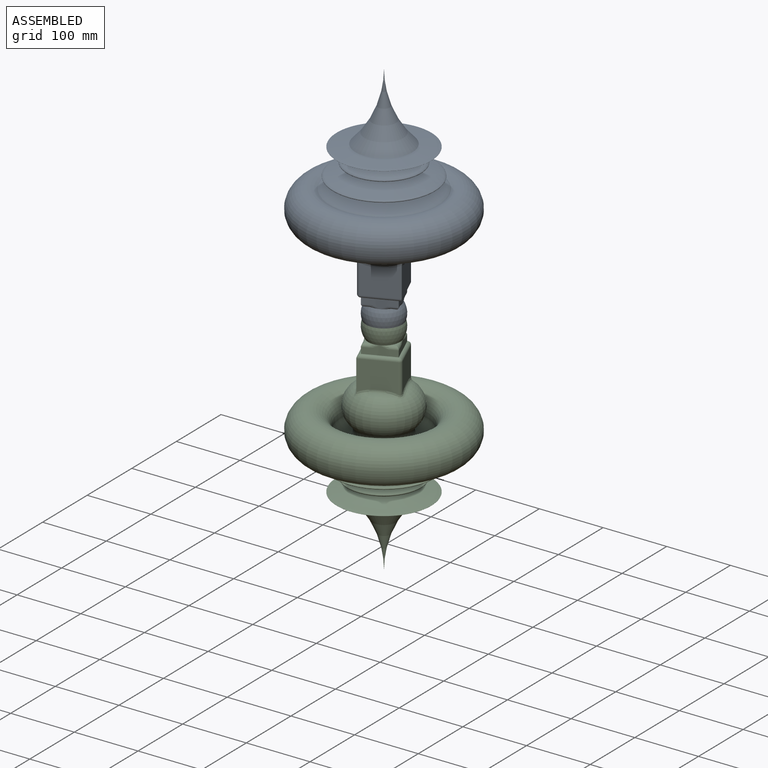
[diagram: assembled view]
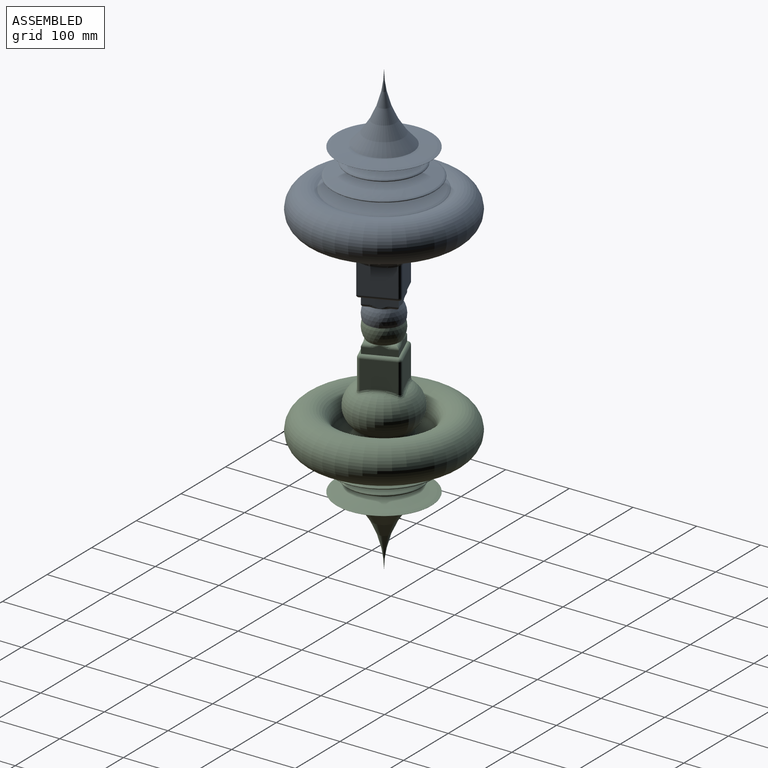
[diagram: assembled view, second angle]
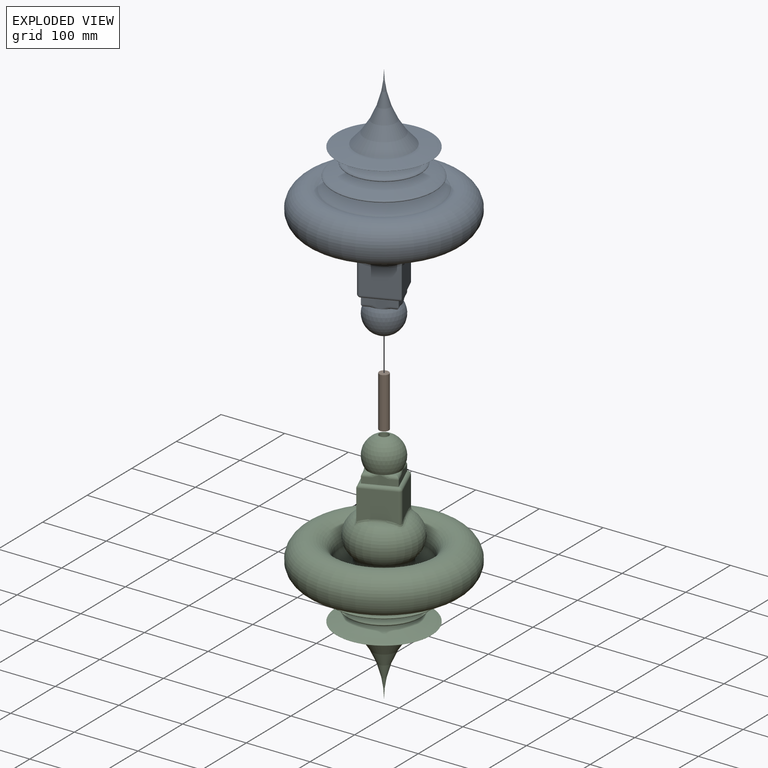
[diagram: exploded view]
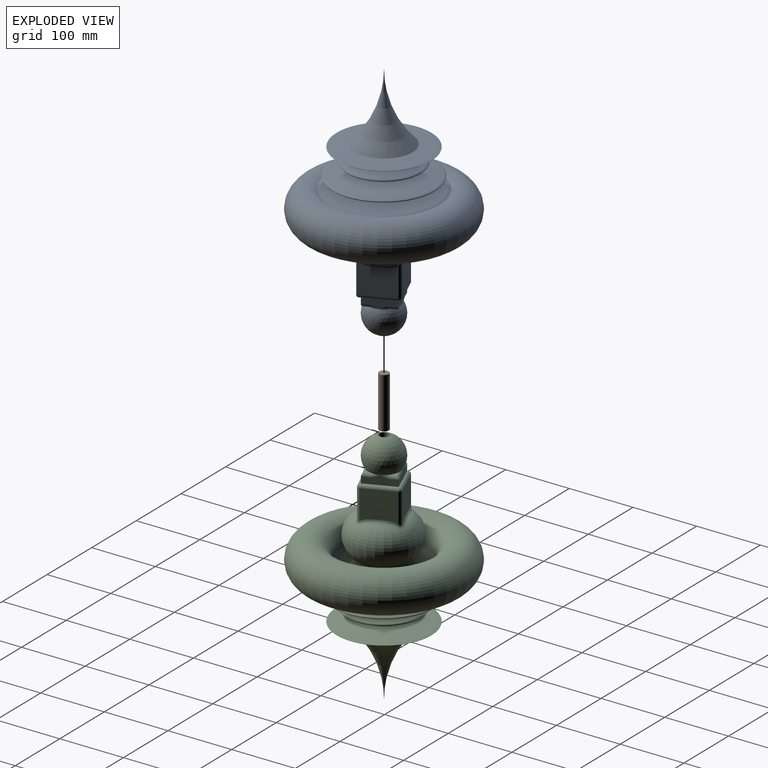
[diagram: exploded view, second angle]
ASSEMBLY  parts=3 mates=2
PART A: 51 faces, bbox 327.8x327.8x485.1 mm
  f0: sphere r=30mm, area 8618.2mm2, adj f1,f2,f3,f36,f38,f41,f44,f47
  f1: plane 5.1x5.1mm, normal (0,0,-1), area 11.7mm2, adj f0,f46,f48
  f2: plane 5.1x5.1mm, normal (0,0,-1), area 11.7mm2, adj f0,f40,f42
  f3: plane 5.1x5.1mm, normal (0,0,-1), area 11.7mm2, adj f0,f43,f45
  f4: torus R=98mm, axis (0,0,-1), area 101326.3mm2, adj f5,f8
  f5: revolved ~171.98x171.98mm, area 85511.3mm2, adj f4,f6
  f6: plane 92.25x92.25mm, normal (0,0,1), area 1573.4mm2, adj f5,f9
  f7: torus R=22.5mm, axis (0,0,-1), area 19213.5mm2, adj f8,f22,f23,f26,f27,f29,f30,f31
  f8: torus R=53.73mm, axis (0,0,-1), area 17654.1mm2, adj f4,f7
  f9: cone r=0mm half-angle=86.3deg, axis (0,0,1), area 1519.2mm2, adj f6,f10
  f10: torus R=150.38mm, axis (0,0,-1), area 11419.6mm2, adj f9
  f11: plane 55.02x47.71mm, normal (1,0,0), area 2366.6mm2, adj f12,f19,f27,f28
  f12: plane 55.02x47.71mm, normal (0,-1,0), area 2366.6mm2, adj f11,f16,f18,f23
  f13: plane 50.02x45.45mm, normal (0,1,0), area 2134mm2, adj f20,f25,f28,f31
  f14: plane 50.02x45.45mm, normal (-1,0,0), area 2134mm2, adj f17,f18,f25,f26
  f15: sphere r=5mm, area 53.5mm2, adj f16,f17,f18
  f16: cylinder r=5mm len=55mm, axis (1,0,0), area 412.3mm2, adj f12,f15,f19,f35
  f17: cylinder r=5mm len=50mm, axis (0,-1,0), area 392.7mm2, adj f14,f15,f21,f34
  f18: cylinder r=5mm len=45.44mm, axis (0,0,-1), area 356.9mm2, adj f12,f14,f15,f22
  f19: cylinder r=5mm len=55mm, axis (0,1,0), area 412.3mm2, adj f11,f16,f24,f32
  f20: cylinder r=5mm len=50mm, axis (-1,0,0), area 392.7mm2, adj f13,f21,f24,f33
  f21: sphere r=5mm, area 39.3mm2, adj f17,f20,f25
  f22: bspline ~11.04x10.48mm, area 55.6mm2, adj f7,f18,f23,f26
  f23: bspline ~64.32x14.85mm, area 332.8mm2, adj f7,f12,f22,f27
  f24: sphere r=5mm, area 39.3mm2, adj f19,f20,f28
  f25: cylinder r=5mm len=45.44mm, axis (0,0,1), area 356.9mm2, adj f13,f14,f21,f29
  f26: bspline ~53.87x9.02mm, area 290.1mm2, adj f7,f14,f22,f29
  f27: bspline ~63.79x13.74mm, area 332.8mm2, adj f7,f11,f23,f30
  f28: cylinder r=5mm len=45.44mm, axis (0,0,-1), area 356.9mm2, adj f11,f13,f24,f30
  f29: bspline ~11.04x10.48mm, area 55.6mm2, adj f7,f25,f26,f31
  f30: bspline ~11.04x10.48mm, area 55.6mm2, adj f7,f27,f28,f31
  f31: bspline ~53.87x9.02mm, area 290.1mm2, adj f7,f13,f29,f30
  f32: plane 50x13.73mm, normal (1,0,0), area 527.8mm2, adj f19,f33,f35,f37,f38,f40
  f33: plane 50x13.73mm, normal (0,1,0), area 527.8mm2, adj f20,f32,f34,f42,f44,f46
  f34: plane 50x13.73mm, normal (-1,0,0), area 527.8mm2, adj f17,f33,f35,f45,f47,f48
  f35: plane 50x13.73mm, normal (0,-1,0), area 527.8mm2, adj f16,f32,f34,f39,f41,f43
  f36: plane 5.1x5.1mm, normal (0,0,-1), area 11.7mm2, adj f0,f37,f39
  f37: cylinder r=5mm len=10.1mm, axis (0,-1,0), area 59.7mm2, adj f32,f36,f38,f39
  f38: bspline ~30.9x5.4mm, area 115.7mm2, adj f0,f32,f37,f40
  f39: cylinder r=5mm len=10.1mm, axis (-1,0,0), area 59.7mm2, adj f35,f36,f37,f41
  f40: cylinder r=5mm len=10.1mm, axis (0,-1,0), area 59.7mm2, adj f2,f32,f38,f42
  f41: bspline ~30.9x5.4mm, area 115.7mm2, adj f0,f35,f39,f43
  f42: cylinder r=5mm len=10.1mm, axis (1,0,0), area 59.7mm2, adj f2,f33,f40,f44
  f43: cylinder r=5mm len=10.1mm, axis (-1,0,0), area 59.7mm2, adj f3,f35,f41,f45
  f44: bspline ~30.9x5.4mm, area 115.7mm2, adj f0,f33,f42,f46
  f45: cylinder r=5mm len=10.1mm, axis (0,1,0), area 59.7mm2, adj f3,f34,f43,f47
  f46: cylinder r=5mm len=10.1mm, axis (1,0,0), area 59.7mm2, adj f1,f33,f44,f48
  f47: bspline ~30.9x5.4mm, area 115.7mm2, adj f0,f34,f45,f48
  f48: cylinder r=5mm len=10.1mm, axis (0,1,0), area 59.7mm2, adj f1,f34,f46,f47
  f49: cylinder r=7.5mm len=38.22mm, axis (0,0,-1), area 1801.1mm2, adj f0,f50
  f50: plane 15x15mm, normal (0,0,-1), area 176.7mm2, adj f49
PART B: 3 faces, bbox 15x15x80 mm
  f0: plane 15x15mm, normal (0,0,1), area 176.7mm2, adj f2
  f1: plane 15x15mm, normal (0,0,-1), area 176.7mm2, adj f2
  f2: cylinder r=7.5mm len=80mm, axis (0,0,1), area 3769.9mm2, adj f0,f1
PART C: same geometry as A
PLACE A rot(axis=(0,0,1),22.5deg) t=(84.42,88.29,-298.67)mm
PLACE B rot(axis=(0,0,1),22.5deg) t=(84.42,88.29,-296.89)mm
PLACE C rot(axis=(0.2,-0.98,0),180deg) t=(84.42,88.29,158.89)mm
MATE fastened B.f2 <-> A.f49  axis (0,0,1) through (84.42,88.29,-49.89)mm
MATE revolute A.f49 <-> C.f49  axis (0,0,1) through (84.42,88.29,-89.89)mm
